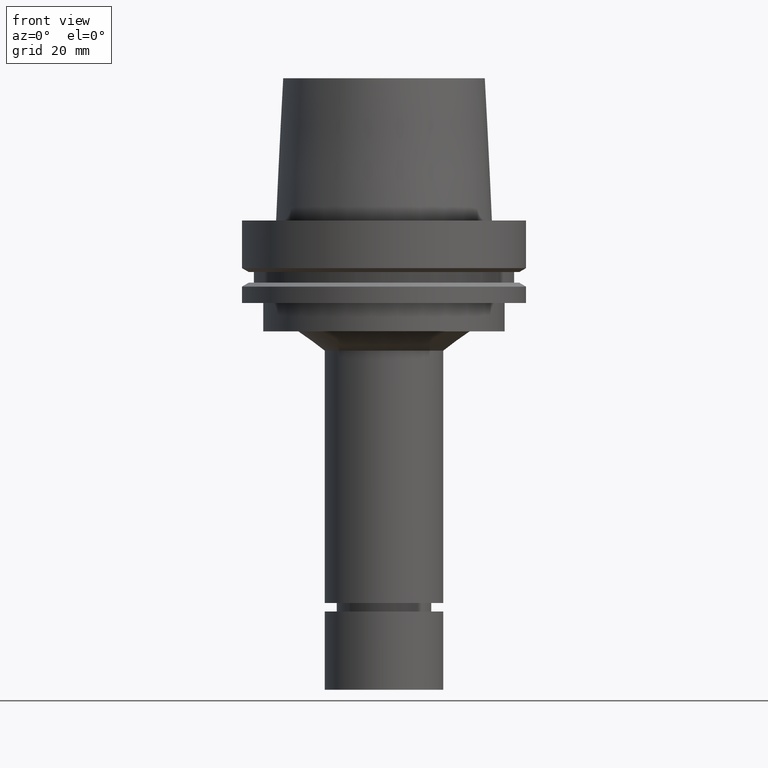
[diagram: clean part render]
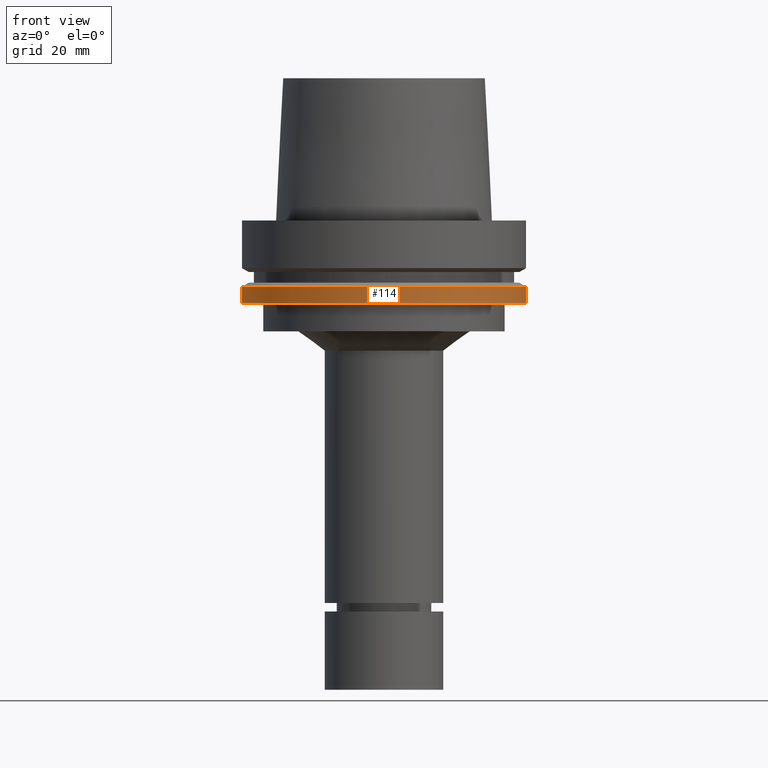
[diagram: same view with one face highlighted and labeled with its STEP entity id]
A machine part, front view. The second image highlights one B-rep face of the part: STEP entity #114.
In plain terms, the highlighted cylindrical surface (bore or boss wall) has radius 50 mm, axis along (0, 0, -1).
Its self-contained STEP definition (entity closure, byte-faithful):
#114=ADVANCED_FACE('Unnamed[1]',(#275,#276),#277,.T.);
#161=EDGE_CURVE('Unnamed[1]',#346,#346,#347,.T.);
#198=EDGE_CURVE('Unnamed[1]',#403,#403,#404,.T.);
#275=FACE_BOUND('',#487,.T.);
#276=FACE_BOUND('',#488,.T.);
#277=CYLINDRICAL_SURFACE('',#489,50.0);
#346=VERTEX_POINT('',#574);
#347=CIRCLE('',#575,50.0);
#403=VERTEX_POINT('',#647);
#404=CIRCLE('',#648,50.0);
#487=EDGE_LOOP('',(#716));
#488=EDGE_LOOP('',(#717));
#489=AXIS2_PLACEMENT_3D('',#718,#719,#720);
#574=CARTESIAN_POINT('',(1.77573785876366E-015,50.0,-29.0));
#575=AXIS2_PLACEMENT_3D('',#793,#794,#795);
#647=CARTESIAN_POINT('',(1.42350465615161E-015,50.0,-23.24759526));
#648=AXIS2_PLACEMENT_3D('',#855,#856,#857);
#716=ORIENTED_EDGE('',*,*,#161,.F.);
#717=ORIENTED_EDGE('',*,*,#198,.T.);
#718=CARTESIAN_POINT('',(1.59962125745764E-015,3.19924251491527E-015,-26.12379763));
#719=DIRECTION('',(6.12323399573677E-017,1.22464679914735E-016,-1.0));
#720=DIRECTION('',(-1.23259516440783E-032,1.0,1.22464679914735E-016));
#793=CARTESIAN_POINT('',(1.77573785876366E-015,3.55147571752733E-015,-29.0));
#794=DIRECTION('',(6.12323399573677E-017,1.22464679914735E-016,-1.0));
#795=DIRECTION('',(-1.23259516440783E-032,1.0,1.22464679914735E-016));
#855=CARTESIAN_POINT('',(1.42350465615161E-015,2.84700931230322E-015,-23.24759526));
#856=DIRECTION('',(6.12323399573677E-017,1.22464679914735E-016,-1.0));
#857=DIRECTION('',(-1.23259516440783E-032,1.0,1.22464679914735E-016));